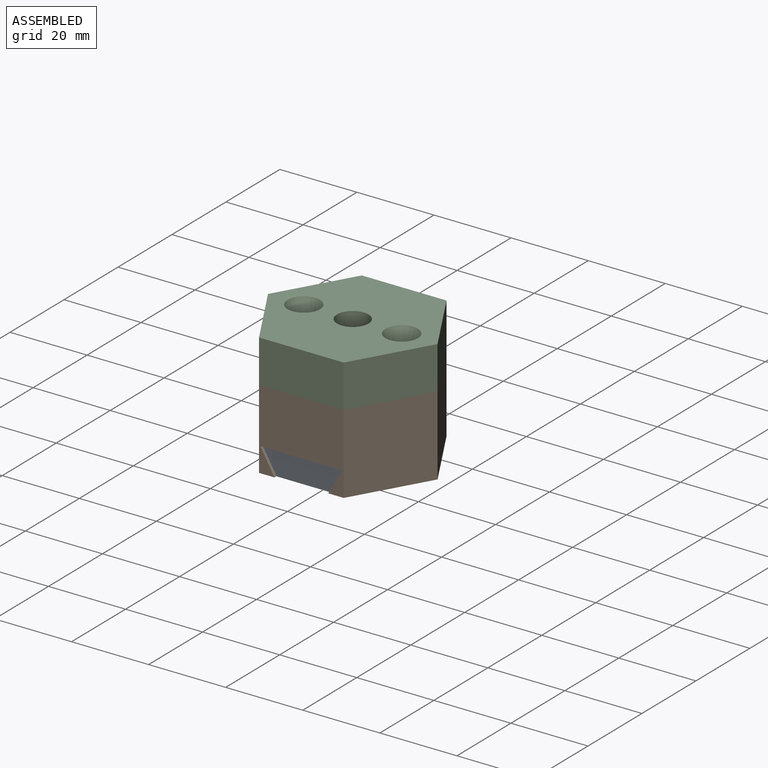
[diagram: assembled view]
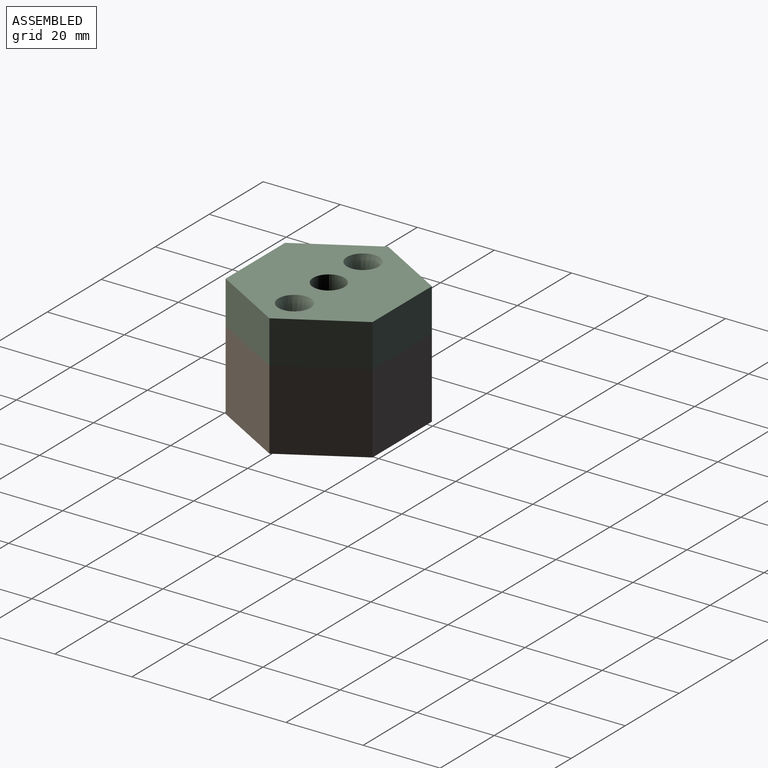
[diagram: assembled view, second angle]
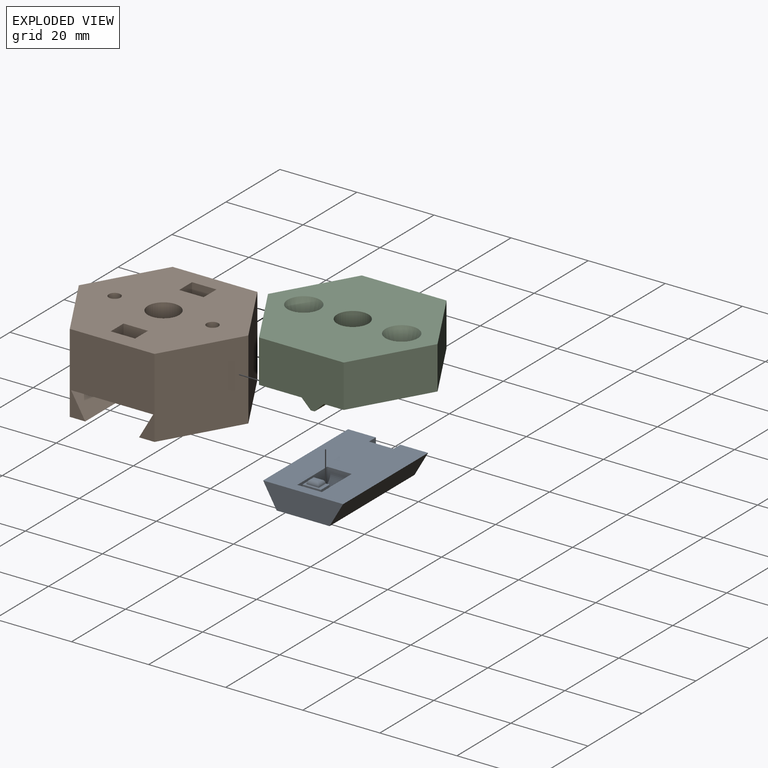
[diagram: exploded view]
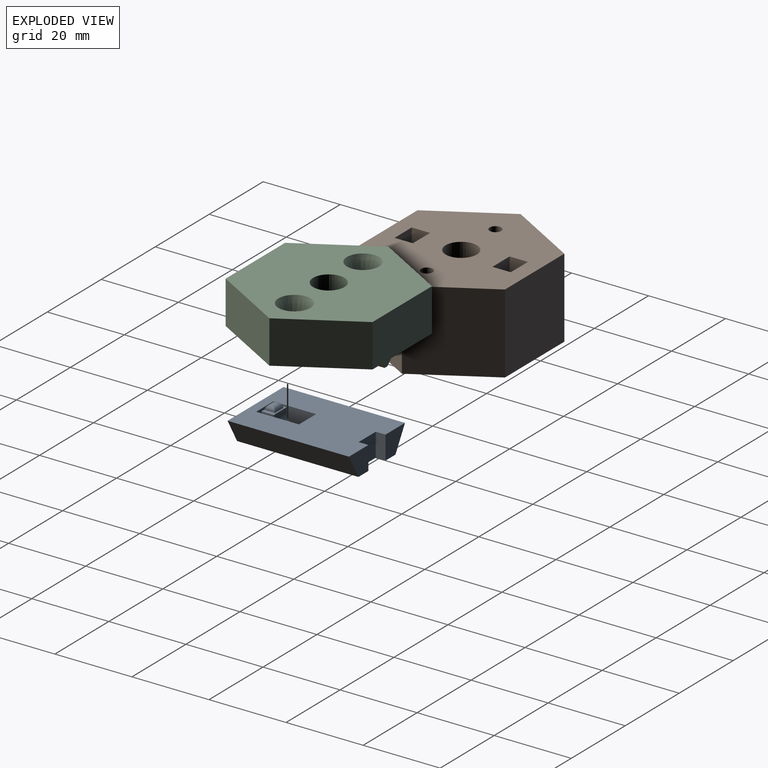
[diagram: exploded view, second angle]
ASSEMBLY  parts=3 mates=6
PART A: 31 faces, bbox 20.8x31.5x7.4 mm
  f0: plane 31.5x20.76mm, normal (0,0,-1), area 567mm2, adj f2,f4,f6,f7,f8,f9,f10,f11
  f1: plane 10.32x6.1mm, normal (1,0,0), area 38.6mm2, adj f3,f5,f12,f13,f18,f19,f20,f21
  f2: plane 7.2x6.1mm, normal (0,1,0), area 33.2mm2, adj f0,f3,f4,f9
  f3: plane 31.5x13.72mm, normal (0,0,1), area 394.4mm2, adj f1,f2,f4,f6,f7,f8,f9,f10
  f4: plane 31.5x6.1mm, normal (-0.87,0,0.5), area 221.7mm2, adj f0,f2,f3,f7
  f5: plane 4.76x3.21mm, normal (0,0,-1), area 4mm2, adj f1,f13,f14,f18,f27,f28,f29,f30
  f6: plane 31.5x6.1mm, normal (0.87,0,0.5), area 221.7mm2, adj f0,f3,f7,f8
  f7: plane 20.76x6.1mm, normal (0,-1,0), area 105.1mm2, adj f0,f3,f4,f6
  f8: plane 7.2x6.1mm, normal (0,1,0), area 33.2mm2, adj f0,f3,f6,f11
  f9: plane 6.1x2.54mm, normal (1,0,0), area 15.5mm2, adj f0,f2,f3,f10
  f10: plane 6.35x6.1mm, normal (0,1,0), area 38.7mm2, adj f0,f3,f9,f11
  f11: plane 6.1x2.54mm, normal (-1,0,0), area 15.5mm2, adj f0,f3,f8,f10
  f12: plane 6.35x6.1mm, normal (0,-1,0), area 15.7mm2, adj f0,f1,f3,f14,f15,f17,f20
  f13: plane 6.1x4.76mm, normal (0,-1,0), area 29mm2, adj f1,f3,f5,f14
  f14: plane 10.32x6.1mm, normal (-1,0,0), area 38.6mm2, adj f3,f5,f12,f13,f18,f19,f20,f21
  f15: plane 11.11x6.1mm, normal (1,0,0), area 67.7mm2, adj f0,f3,f12,f16
  f16: plane 6.35x6.1mm, normal (0,1,0), area 38.7mm2, adj f0,f3,f15,f17
  f17: plane 11.11x6.1mm, normal (-1,0,0), area 67.7mm2, adj f0,f3,f12,f16
  f18: plane 4.76x1.27mm, normal (0,1,0), area 6mm2, adj f1,f5,f14,f21
  f19: plane 4.76x2.03mm, normal (0,0,-1), area 9.7mm2, adj f1,f14,f20,f21
  f20: cylinder r=2.54mm len=4.76mm, axis (1,0,0), area 19mm2, adj f1,f12,f14,f19
  f21: cylinder r=2.54mm len=4.76mm, axis (-1,0,0), area 19mm2, adj f1,f14,f18,f19
  f22: plane 1.14x0.51mm, normal (0,0,-1), area 0.6mm2, adj f23,f24,f25,f26
  f23: cylinder r=1.02mm len=3.18mm, axis (1,0,0), area 3.9mm2, adj f22,f24,f25,f27
  f24: cylinder r=1.02mm len=2.54mm, axis (0,-1,0), area 2.9mm2, adj f22,f23,f26,f28
  f25: cylinder r=1.02mm len=2.54mm, axis (0,1,0), area 2.9mm2, adj f22,f23,f26,f29
  f26: cylinder r=1.02mm len=3.18mm, axis (-1,0,0), area 3.9mm2, adj f22,f24,f25,f30
  f27: cylinder r=0.25mm len=3.68mm, axis (1,0,0), area 1.3mm2, adj f5,f23,f28,f29
  f28: cylinder r=0.25mm len=3.05mm, axis (0,-1,0), area 1.1mm2, adj f5,f24,f27,f30
  f29: cylinder r=0.25mm len=3.05mm, axis (0,1,0), area 1.1mm2, adj f5,f25,f27,f30
  f30: cylinder r=0.25mm len=3.68mm, axis (-1,0,0), area 1.3mm2, adj f5,f26,f28,f29
PART B: 35 faces, bbox 38.1x44x20.6 mm
  f0: plane 43.99x38.1mm, normal (0,0,-1), area 1130.2mm2, adj f1,f2,f3,f4,f5,f6,f7,f19
  f1: plane 20.64x19.05mm, normal (-0.5,0.87,0), area 342mm2, adj f0,f4,f5,f8,f11,f12,f13
  f2: cylinder r=4.06mm len=8.13mm, axis (0,0,-1), area 162.1mm2, adj f0,f10
  f3: plane 22x20.64mm, normal (1,0,0), area 454mm2, adj f0,f4,f7,f8
  f4: plane 20.64x19.05mm, normal (0.5,0.87,0), area 454mm2, adj f0,f1,f3,f8
  f5: plane 22x20.64mm, normal (-1,0,0), area 454mm2, adj f0,f1,f6,f8
  f6: plane 20.64x19.05mm, normal (-0.5,-0.87,0), area 454mm2, adj f0,f5,f7,f8
  f7: plane 20.64x19.05mm, normal (0.5,-0.87,0), area 454mm2, adj f0,f3,f6,f8
  f8: plane 43.99x38.1mm, normal (0,0,1), area 813.6mm2, adj f1,f3,f4,f5,f6,f7,f12,f13
  f9: cylinder r=6.99mm len=13.97mm, axis (0,0,1), area 348.4mm2, adj f10,f11
  f10: plane 13.97x13.97mm, normal (0,0,1), area 101.4mm2, adj f2,f9
  f11: plane 38.15x34.32mm, normal (0,0,1), area 483.8mm2, adj f1,f9,f12,f13,f14,f15,f16,f17
  f12: plane 29.33x19.05mm, normal (-0.75,-0.43,-0.5), area 232.8mm2, adj f1,f8,f11,f14
  f13: plane 29.33x19.05mm, normal (0.75,0.43,-0.5), area 232.8mm2, adj f1,f8,f11,f14
  f14: plane 18.45x10.65mm, normal (-0.5,0.87,0), area 112mm2, adj f8,f11,f12,f13
  f15: plane 3.57x2.06mm, normal (-0.87,-0.5,0), area 3.6mm2, adj f11,f17,f18
  f16: plane 3.57x2.06mm, normal (0.87,0.5,0), area 3.6mm2, adj f11,f17,f18
  f17: cylinder r=1.52mm len=9.66mm, axis (-0.87,-0.5,0), area 37mm2, adj f11,f15,f16,f18
  f18: cylinder r=1.52mm len=8.9mm, axis (-0.87,-0.5,0), area 14.8mm2, adj f11,f15,f16,f17
  f19: plane 7.62x5.5mm, normal (-0.5,0.87,0), area 38.3mm2, adj f0,f20,f22,f27,f28
  f20: plane 4.45x4.12mm, normal (0.87,0.5,0), area 21.2mm2, adj f0,f19,f21,f27
  f21: plane 7.62x5.5mm, normal (0.5,-0.87,0), area 38.3mm2, adj f0,f20,f22,f27,f28
  f22: plane 4.45x4.12mm, normal (-0.87,-0.5,0), area 21.2mm2, adj f0,f19,f21,f28
  f23: plane 4.45x4.12mm, normal (0.87,0.5,0), area 21.2mm2, adj f0,f24,f26,f30
  f24: plane 7.62x5.5mm, normal (0.5,-0.87,0), area 38.3mm2, adj f0,f23,f25,f29,f30
  f25: plane 4.45x4.12mm, normal (-0.87,-0.5,0), area 21.2mm2, adj f0,f24,f26,f29
  f26: plane 7.62x5.5mm, normal (-0.5,0.87,0), area 38.3mm2, adj f0,f23,f25,f29,f30
  f27: plane 5.71x5.13mm, normal (0.61,0.35,-0.71), area 21.4mm2, adj f19,f20,f21,f28
  f28: plane 5.71x5.13mm, normal (-0.61,-0.35,-0.71), area 21.4mm2, adj f19,f21,f22,f27
  f29: plane 5.71x5.13mm, normal (-0.61,-0.35,-0.71), area 21.4mm2, adj f24,f25,f26,f30
  f30: plane 5.71x5.13mm, normal (0.61,0.35,-0.71), area 21.4mm2, adj f23,f24,f26,f29
  f31: cylinder r=1.52mm len=19.05mm, axis (0,0,-1), area 182.4mm2, adj f0,f32
  f32: plane 3.05x3.05mm, normal (0,0,-1), area 7.3mm2, adj f31
  f33: cylinder r=1.52mm len=19.05mm, axis (0,0,-1), area 182.4mm2, adj f0,f34
  f34: plane 3.05x3.05mm, normal (0,0,-1), area 7.3mm2, adj f33
PART C: 34 faces, bbox 44x38.1x15.9 mm
  f0: plane 43.99x38.1mm, normal (0,0,1), area 1022.6mm2, adj f2,f3,f4,f5,f6,f7,f9,f10
  f1: cylinder r=4.06mm len=8.13mm, axis (0,0,-1), area 115.1mm2, adj f8,f15
  f2: plane 19.05x11.11mm, normal (-0.87,-0.5,0), area 244.4mm2, adj f0,f3,f7,f8
  f3: plane 22x11.11mm, normal (0,-1,0), area 244.4mm2, adj f0,f2,f4,f8
  f4: plane 19.05x11.11mm, normal (0.87,-0.5,0), area 244.4mm2, adj f0,f3,f5,f8
  f5: plane 19.05x11.11mm, normal (0.87,0.5,0), area 244.4mm2, adj f0,f4,f6,f8
  f6: plane 22x11.11mm, normal (0,1,0), area 244.4mm2, adj f0,f5,f7,f8
  f7: plane 19.05x11.11mm, normal (-0.87,0.5,0), area 244.4mm2, adj f0,f2,f6,f8
  f8: plane 43.99x38.1mm, normal (0,0,-1), area 1094.9mm2, adj f1,f2,f3,f4,f5,f6,f7,f28
  f9: plane 7.48x6.6mm, normal (-1,0,0), area 49.4mm2, adj f0,f10,f14,f15
  f10: plane 6.6x6.48mm, normal (-0.5,-0.87,0), area 49.4mm2, adj f0,f9,f11,f15
  f11: plane 6.6x6.48mm, normal (0.5,-0.87,0), area 49.4mm2, adj f0,f10,f12,f15
  f12: plane 7.48x6.6mm, normal (1,0,0), area 49.4mm2, adj f0,f11,f13,f15
  f13: plane 6.6x6.48mm, normal (0.5,0.87,0), area 49.4mm2, adj f0,f12,f14,f15
  f14: plane 6.6x6.48mm, normal (-0.5,0.87,0), area 49.4mm2, adj f0,f9,f13,f15
  f15: plane 14.96x12.95mm, normal (0,0,1), area 93.4mm2, adj f1,f9,f10,f11,f12,f13,f14
  f16: plane 6.1x4.76mm, normal (0,1,0), area 22.6mm2, adj f0,f17,f19,f20,f32,f33
  f17: plane 4.32x2.22mm, normal (-1,0,0), area 9.6mm2, adj f0,f16,f18,f32
  f18: plane 6.1x4.76mm, normal (0,-1,0), area 22.6mm2, adj f0,f17,f19,f20,f32,f33
  f19: plane 4.32x2.22mm, normal (1,0,0), area 9.6mm2, adj f0,f16,f18,f33
  f20: plane 4.32x1.02mm, normal (0,0,1), area 4.4mm2, adj f16,f18,f32,f33
  f21: plane 6.1x4.76mm, normal (0,1,0), area 22.6mm2, adj f0,f22,f24,f25,f30,f31
  f22: plane 4.32x2.22mm, normal (-1,0,0), area 9.6mm2, adj f0,f21,f23,f30
  f23: plane 6.1x4.76mm, normal (0,-1,0), area 22.6mm2, adj f0,f22,f24,f25,f30,f31
  f24: plane 4.32x2.22mm, normal (1,0,0), area 9.6mm2, adj f0,f21,f23,f31
  f25: plane 4.32x1.02mm, normal (0,0,1), area 4.4mm2, adj f21,f23,f30,f31
  f26: cylinder r=2.41mm len=6.03mm, axis (0,0,1), area 91.5mm2, adj f0,f28
  f27: cylinder r=2.41mm len=6.03mm, axis (0,0,1), area 91.5mm2, adj f0,f29
  f28: cone r=4.19mm half-angle=19.3deg, axis (0,0,-1), area 111.7mm2, adj f8,f26
  f29: cone r=4.19mm half-angle=19.3deg, axis (0,0,-1), area 111.7mm2, adj f8,f27
  f30: plane 4.32x2.54mm, normal (-0.71,0,0.71), area 15.5mm2, adj f21,f22,f23,f25
  f31: plane 4.32x2.54mm, normal (0.71,0,0.71), area 15.5mm2, adj f21,f23,f24,f25
  f32: plane 4.32x2.54mm, normal (-0.71,0,0.71), area 15.5mm2, adj f16,f17,f18,f20
  f33: plane 4.32x2.54mm, normal (0.71,0,0.71), area 15.5mm2, adj f16,f18,f19,f20
PLACE A rot(axis=(0,-1,0),180deg) t=(-44.81,25.41,27.51)mm
PLACE B rot(axis=(-0.97,-0.26,0),180deg) t=(-51.94,12.71,59.01)mm
PLACE C rot(axis=(-1,0,0),180deg) t=(-51.94,12.71,59.01)mm
MATE planar A.f0 <-> B.f9  axis (0,0,1) through (-51.66,10.22,33.61)mm
MATE planar B.f3 <-> C.f4  axis (0.87,0.5,0) through (-35.44,22.23,37.58)mm
MATE planar B.f14 <-> A.f2  axis (0,-1,0) through (-51.94,25.41,30.65)mm
MATE planar C.f5 <-> B.f4  axis (0.87,-0.5,0) through (-35.44,3.18,53.45)mm
MATE planar A.f4 <-> B.f12  axis (0.87,0,-0.5) through (-43.05,9.66,30.56)mm
MATE planar C.f0 <-> B.f2  axis (0,0,-1) through (-58.41,16.45,47.9)mm
